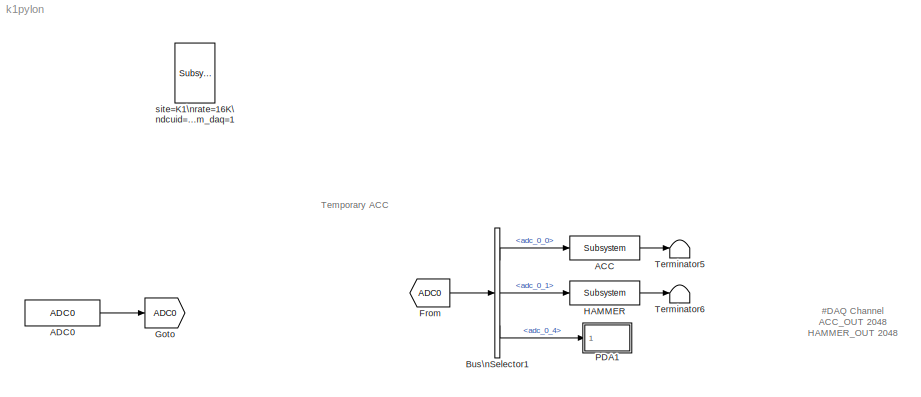
MODEL k1pylon
KIND model
BLOCK [Reference] ACC  REF=cdsFilt/Subsystem
  AttributesFormatString = %<Tag>
  Description = Purpose:                                                                                                                                                                                                                                  \nStandard CDS IIR filter module.                                                                                                                                     ...<+1302ch>  <repeated x3 — deduplicated; at blocks: ACC, HAMMER, DC>
  Ports = [1, 1]
  SID = 461
  SourceBlock = cdsFilt/Subsystem
  SourceType = SubSystem
  Tag = cdsFilt
BLOCK [Reference] ADC0  REF=cdsAdcx0/ADC0
  AttributesFormatString = %<Description>\\n%<Tag>
  Description = type-GSC_16AI64SSA\ncard_num=0
  Ports = [0, 1]
  SID = 457
  SourceBlock = cdsAdcx0/ADC0
  SourceType = SubSystem
  Tag = cdsAdc
BLOCK [BusSelector] Bus\nSelector1
  OutputSignals = adc_0_0,adc_0_1,adc_0_4
  Ports = [1, 3]
  SID = 448
BLOCK [From] From
  GotoTag = ADC0
  SID = 460
BLOCK [Goto] Goto
  GotoTag = ADC0
  SID = 459
BLOCK [Reference] HAMMER  REF=cdsFilt/Subsystem
  AttributesFormatString = %<Tag>
  Ports = [1, 1]
  SID = 462
  SourceBlock = cdsFilt/Subsystem
  SourceType = SubSystem
  Tag = cdsFilt
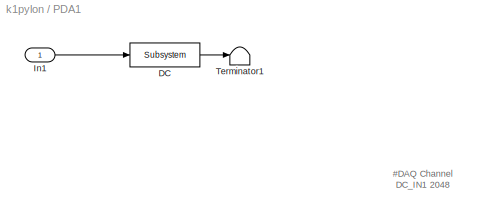
BLOCK [SubSystem] PDA1
  Ports = [1]
  RequestExecContextInheritance = off
  SID = 468
BLOCK [Reference] PDA1/DC  REF=cdsFilt/Subsystem
  AttributesFormatString = %<Tag>
  Ports = [1, 1]
  SID = 464
  SourceBlock = cdsFilt/Subsystem
  SourceType = SubSystem
  Tag = cdsFilt
BLOCK [Inport] PDA1/In1
  IconDisplay = Port number
  SID = 469
BLOCK [Terminator] PDA1/Terminator1
  SID = 465
BLOCK [Terminator] Terminator5
  SID = 454
BLOCK [Terminator] Terminator6
  SID = 455
BLOCK [Reference] site=K1\nrate=16K\ndcuid=1048\nhost=k1ey0\nspecific_cpu=3\nadcSlave=1\nshmem_daq=1  REF=cdsParameters/Subsystem
  AttributesFormatString = %<Tag>
  Description = Purpose:                                                                                                                                                                                                                                \nProvide system parameters to the FE code generator to properly configure the generated EPICS names, rep rate of the FE controller, and the Data Acquisition node ID fo...<+2934ch>
  Ports = [1, 1]
  SID = 433
  SourceBlock = cdsParameters/Subsystem
  SourceType = SubSystem
  Tag = cdsParameters
ANNOTATION (root): #DAQ Channel\nACC_OUT 2048\nHAMMER_OUT 2048
ANNOTATION (root): \n \n \n Temporary ACC
ANNOTATION PDA1: #DAQ Channel\nDC_IN1 2048
LINE ACC:1 -> Terminator5:1
LINE ADC0:1 -> Goto:1
LINE Bus\nSelector1:1 -> ACC:1
LINE Bus\nSelector1:2 -> HAMMER:1
LINE Bus\nSelector1:3 -> PDA1:1
LINE From:1 -> Bus\nSelector1:1
LINE HAMMER:1 -> Terminator6:1
LINE PDA1/DC:1 -> PDA1/Terminator1:1
LINE PDA1/In1:1 -> PDA1/DC:1
